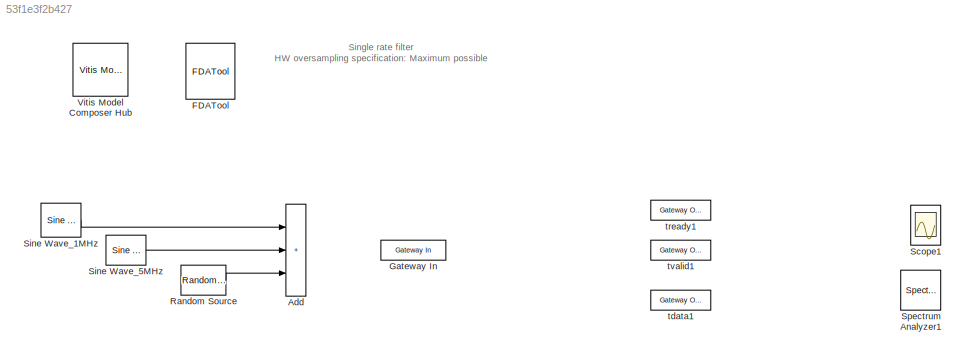
MODEL slx_53f1e3f2b427
KIND model
CONFIG AbsTol = auto
CONFIG EnableMultiTasking = on
CONFIG FixedStep = auto
CONFIG MaxStep = auto
CONFIG MinStep = auto
CONFIG RelTol = 1e-3
CONFIG SampleTimeConstraint = Unconstrained
CONFIG SolverName = ode45
CONFIG StartTime = 0.0
CONFIG StopTime = 8192/100e6
BLOCK [Sum] Add
  IconShape = rectangular
  Inputs = +++
BLOCK [Reference] FDATool  REF=hdlUtilities/FDATool
  SourceBlock = hdlUtilities/FDATool
  SourceType = Xilinx FDATool Interface Block
  UserDataPersistent = on
BLOCK [Reference] Gateway In  REF=hdlBasic/Gateway In
  SourceBlock = hdlBasic/Gateway In
  SourceType = Gateway In Block
BLOCK [Reference] Random Source  REF=dspobslib/Random
Source
  SourceBlock = dspobslib/Random\nSource
  SourceType = Random Source Obsolete
  UserDataPersistent = on
BLOCK [Scope] Scope1
  Floating = off
  NumInputPorts = 3
  ScopeSpecificationString = Simulink.scopes.TimeScopeBlockCfg('CurrentConfiguration', extmgr.ConfigurationSet(extmgr.Configuration('Core','General UI',true,'DisplayFullSourceName',false,'ShowMainToolbar',true),extmgr.Configuration('Sources','WiredSimulink',true,'DataLogging',false,'DataLoggingVariableName','ScopeData1','DataLoggingLimitDataPoints',false,'DataLoggingMaxPoints','5000','DataLoggingDecimateData',false,'DataLoggi...<+3585ch>
BLOCK [Reference] Sine Wave_1MHz  REF=dspsrcs4/Sine Wave
  LibrarySourceBlock = dsphdlsupportsrcs/Sine Wave
  SourceBlock = dspsrcs4/Sine Wave
  SourceType = Sine Wave
BLOCK [Reference] Sine Wave_5MHz  REF=dspsrcs4/Sine Wave
  LibrarySourceBlock = dsphdlsupportsrcs/Sine Wave
  SourceBlock = dspsrcs4/Sine Wave
  SourceType = Sine Wave
BLOCK [SpectrumAnalyzer] Spectrum Analyzer1
  GraphicalSettings = {"GraphicalSettings":{"Style":{"BackgroundColor":[0.12941176470588237,0.12941176470588237,0.12941176470588237],"AxesColor":[0.070588235294117646,0.070588235294117646,0.070588235294117646],"LabelsColor":[0.85098039215686272,0.85098039215686272,0.85098039215686272],"PreserveColors":false,"Visible":true,"LineStyle":["-"],"LineColor":[1,0.90980392156862744,0.39215686274509803],"LineWidth":1.5,"Marker"...<+946ch>
  ScopeFrameLocation = window
  ShowLegend = on
  Span = 99999.99999999999
  StartFrequency = -49999.99999999999
  StopFrequency = 49999.99999999999
  Visible = on
  WasSavedAsWebScope = on
  WindowPosition = [1.000000,1.000000,1280.000000,744.000000,]
  YLimits = [-44.56067159,30.55989067]
BLOCK [Reference] Vitis Model Composer Hub  REF=vmcUtilities/Vitis Model Composer Hub
  SourceBlock = vmcUtilities/Vitis Model Composer Hub
  SourceType = VMC Hub
  Tag = genX
  UserDataPersistent = on
BLOCK [Reference] tdata1  REF=hdlBasic/Gateway Out
  SourceBlock = hdlBasic/Gateway Out
  SourceType = Gateway Out Block
BLOCK [Reference] tready1  REF=hdlBasic/Gateway Out
  SourceBlock = hdlBasic/Gateway Out
  SourceType = Gateway Out Block
BLOCK [Reference] tvalid1  REF=hdlBasic/Gateway Out
  SourceBlock = hdlBasic/Gateway Out
  SourceType = Gateway Out Block
ANNOTATION (root): Single rate filter HW oversampling specification: Maximum possible
LINE Random Source:1 -> Add:3
LINE Sine Wave_1MHz:1 -> Add:1
LINE Sine Wave_5MHz:1 -> Add:2
